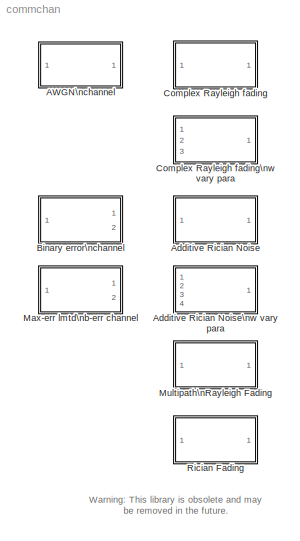
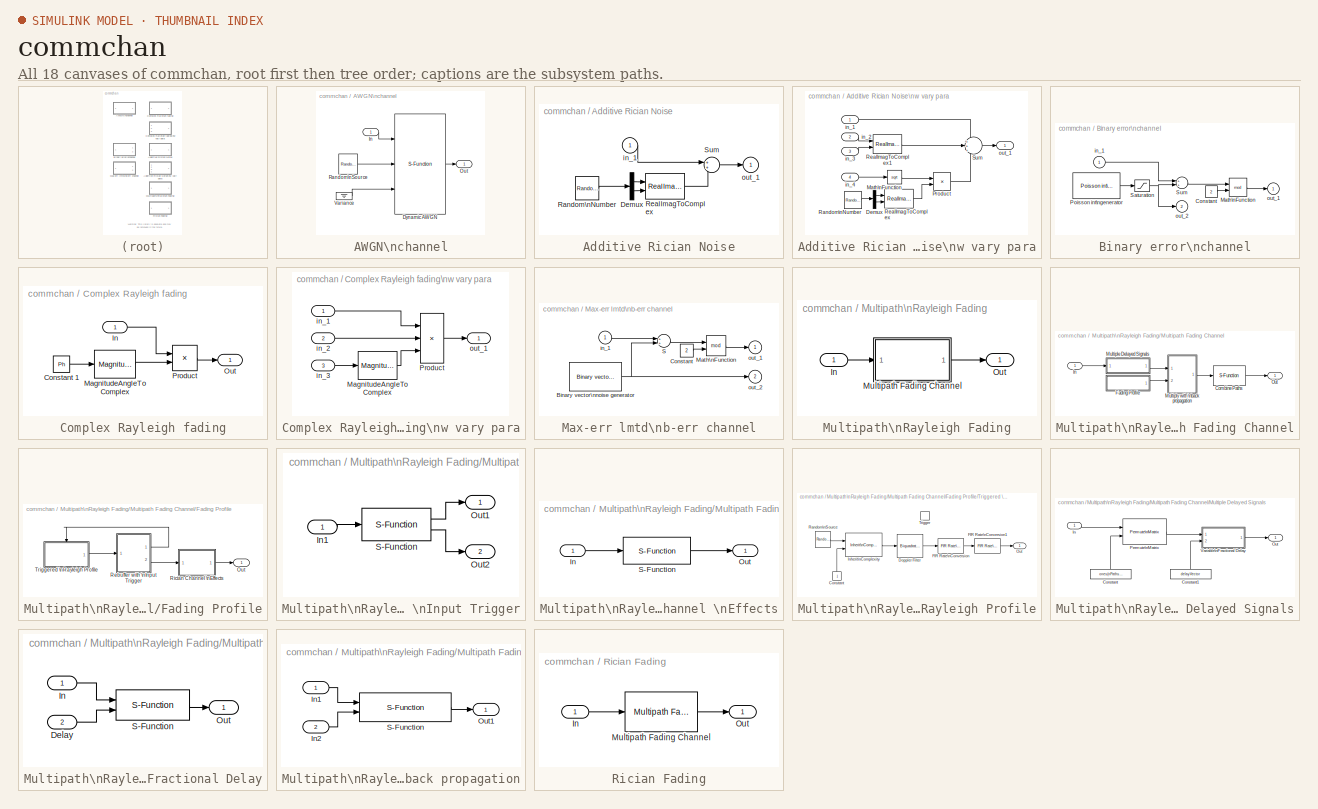
[diagram: thumbnail index - all 18 canvases of the model, root first then tree order]
MODEL commchan
KIND library
BLOCK [SubSystem] AWGN\nchannel
  MaskCallbackString = |commblkawgnchan(gcb,'Mode');||||||commblkawgnchan(gcb,'FrameBased');|
  MaskDescription = Add white Gaussian noise to the input signal. The input and output signals can be real or complex. This block supports multi channel input and output signals as well as frame-based processing.\n\nWhen using either of the variance modes with complex inputs, the variance values are equally divided among the real and imaginary components of the input signal.
  MaskDisplay = plot(-10,-10,110, 110,[05 15 10 10 05 10 18 14 13 7.5 13 41 44 47 50 53 57\n59 100-[13 7.5 13 14 18 10 5 10 10 15 5]],[70 70 70 85 92 85 79 82 90 88.5\n90 90 87 93 87 93 87 90 90 88.5 90 82 79 85 92 85 70 70 70]);\ndisp('AWGN');\nport_label('input',s.i1,s.i1s);\nport_label('input',s.i2,s.i2s);\nport_label('output',s.o1,s.o1s);\n
  MaskEnableString = on,on,on,off,on,on,off,on,off
  MaskIconFrame = on
  MaskIconOpaque = on
  MaskIconRotate = none
  MaskIconUnits = autoscale
  MaskInitialization = [mode,s]=commblkawgnchan(gcb,'init');
  MaskPromptString = Initial seed:|Mode:|Es/No (dB):|SNR (dB):|Input signal power (Watts):|Symbol period (sec):|Variance:|Frame-based inputs|Number of channels:
  MaskSelfModifiable = on
  MaskStyleString = edit,popup(Signal to noise ratio  (Es/No)|Signal to noise ratio  (SNR)|Variance from mask|Variance from port),edit,edit,edit,edit,edit,checkbox,edit
  MaskToolTipString = on,on,on,on,on,on,on,on,on
  MaskTunableValueString = off,off,on,on,on,off,on,off,off
  MaskType = AWGN Channel
  MaskValueString = 123456|Signal to noise ratio  (Es/No)|10|10|1|1|1|off|1
  MaskVarAliasString = ,,,,,,,,
  MaskVariables = seed=@1;noiseMode=@2;EsNodB=@3;SNRdB=@4;Ps=@5;Tsym=@6;variance=@7;FrameBased=@8;nChans=@9;
  MaskVisibilityString = on,on,on,off,on,on,off,on,on
  Ports = [1, 1]
  TreatAsAtomicUnit = off
BLOCK [S-Function] AWGN\nchannel/Dynamic AWGN
  FunctionName = scomawgnchan
  MaskIconFrame = on
  MaskIconOpaque = on
  MaskIconRotate = none
  MaskIconUnits = autoscale
  Parameters = noiseMode,EsNodB,SNRdB,Ps,Tsym,variance,FrameBased,nChans
  Ports = [3, 1]
BLOCK [Inport] AWGN\nchannel/In
BLOCK [Outport] AWGN\nchannel/Out
BLOCK [Reference] AWGN\nchannel/Random\nSource  REF=dspsrcs2/Random\nSource
  Diagnostics = AllowInheritedTsInSrc
  Inherit = on
  Max = 1
  Mean = 0
  Min = 0
  OutComplex = Real
  Ports = [0, 1]
  SampFrame = 1
  SampMode = Discrete
  SampTime = 1
  Seed = seed
  SourceBlock = dspsrcs2/Random\nSource
  SourceType = Random Source
  SrcType = Gaussian
  Var = 1
BLOCK [Ground] AWGN\nchannel/Variance
BLOCK [SubSystem] Additive Rician Noise
  MaskCallbackString = |||
  MaskDescription = Additive Rician noise channel for baseband signal simulation. Input and output signals are complex.
  MaskDisplay = plot(0,0,100,100,[05 15 10 10 05 10 18 14 13 7.5 13 41 44 47 50 53 57 59 100-[13 7.5 13 14 18 10 5 10 10 15 5]],[70 70 70 85 92 85 79 82 90 88.5 90 90 87 93 87 93 87 90 90 88.5 90 82 79 85 92 85 70 70 70]);\ndisp('Complex\\nRician Noise')
  MaskEnableString = on,on,on,on
  MaskHelp = This block adds Rician noise to the input signal. The input and output of this block are complex signals. Rician noise is composed of two independant Gaussian noise elements. The two Gaussian components have the same variance. Their mean values are in-phase mean and quadrature mean respectively.
  MaskIconFrame = on
  MaskIconOpaque = on
  MaskIconRotate = none
  MaskIconUnits = autoscale
  MaskInitialization = rand('state',s(1));\nSeedVec = floor(1e5*rand(2,1));\n\n\n
  MaskPromptString = In-phase mean:|Quadrature mean:|Variance:|Seed:
  MaskStyleString = edit,edit,edit,edit
  MaskToolTipString = on,on,on,on
  MaskTunableValueString = on,on,on,on
  MaskType = Rician noise channel, fixed parameter
  MaskValueString = .1|.3|.1|1234
  MaskVarAliasString = ,,,
  MaskVariables = m1=@1;m2=@2;d=@3;s=@4;
  MaskVisibilityString = on,on,on,on
  Ports = [1, 1]
  TreatAsAtomicUnit = off
BLOCK [Demux] Additive Rician Noise/Demux
  Outputs = 2
  Ports = [1, 2]
BLOCK [RandomNumber] Additive Rician Noise/Random\nNumber
  Diagnostics = AllowInheritedTsInSrc
  Mean = [m1 m2]
  Seed = SeedVec
  Variance = [d d]
BLOCK [RealImagToComplex] Additive Rician Noise/RealImagToComplex
  Input = Real and imag
  Ports = [2, 1]
BLOCK [Sum] Additive Rician Noise/Sum
  IconShape = round
  Ports = [2, 1]
BLOCK [Inport] Additive Rician Noise/in_1
BLOCK [Outport] Additive Rician Noise/out_1
  InitialOutput = 0
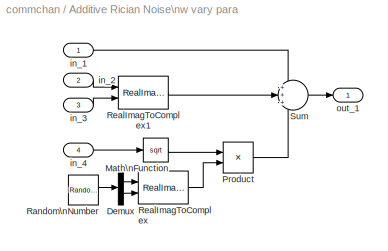
BLOCK [SubSystem] Additive Rician Noise\nw vary para
  MaskDescription = Add Rician noise to complex signal (1st port) with the varying in-phase mean (2nd port), quadrature mean (3rd port), and variance (4th port).
  MaskDisplay = plot(0,0,100,100,[05 15 10 10 05 10 18 14 13 7.5 13 41 44 47 50 53 57 59 100-[13 7.5 13 14 18 10 5 10 10 15 5]],[70 70 70 85 92 85 79 82 90 88.5 90 90 87 93 87 93 87 90 90 88.5 90 82 79 85 92 85 70 70 70]);\ndisp('Complex\\nRician Noise')
  MaskEnableString = on
  MaskHelp = This block adds Rician noise to the transmitted signal. The 1st port input and output of this block are complex data. The Rician noise is composed of two independant Gaussian noise elements. The mean value of the two Gaussian components are input from 2nd and 3rd inports respectively. Their variance are the same which is input from the 4th inport.
  MaskIconFrame = on
  MaskIconOpaque = on
  MaskIconRotate = none
  MaskIconUnits = autoscale
  MaskInitialization = rand('state',s(1));\nSeedVec = floor(1e5*rand(2,1));\n\n
  MaskPromptString = Seeds:
  MaskStyleString = edit
  MaskToolTipString = on
  MaskTunableValueString = on
  MaskType = Rician noise channel, vary parameter
  MaskValueString = [13579,  24680]
  MaskVariables = s=@1;
  MaskVisibilityString = on
  Ports = [4, 1]
  TreatAsAtomicUnit = off
BLOCK [Demux] Additive Rician Noise\nw vary para/Demux
  Outputs = 2
  Ports = [1, 2]
BLOCK [Math] Additive Rician Noise\nw vary para/Math\nFunction
  Operator = sqrt
  Ports = [1, 1]
BLOCK [Product] Additive Rician Noise\nw vary para/Product
  Ports = [2, 1]
BLOCK [RandomNumber] Additive Rician Noise\nw vary para/Random\nNumber
  Diagnostics = AllowInheritedTsInSrc
  Seed = SeedVec
BLOCK [RealImagToComplex] Additive Rician Noise\nw vary para/RealImagToComplex
  Input = Real and imag
  Ports = [2, 1]
BLOCK [RealImagToComplex] Additive Rician Noise\nw vary para/RealImagToComplex1
  Input = Real and imag
  Ports = [2, 1]
BLOCK [Sum] Additive Rician Noise\nw vary para/Sum
  IconShape = round
  Inputs = +++
  Ports = [3, 1]
BLOCK [Inport] Additive Rician Noise\nw vary para/in_1
BLOCK [Inport] Additive Rician Noise\nw vary para/in_2
  Port = 2
BLOCK [Inport] Additive Rician Noise\nw vary para/in_3
  Port = 3
BLOCK [Inport] Additive Rician Noise\nw vary para/in_4
  Port = 4
BLOCK [Outport] Additive Rician Noise\nw vary para/out_1
  InitialOutput = 0
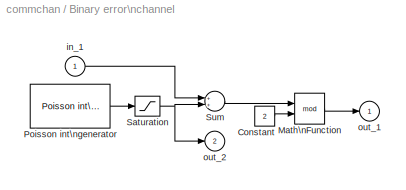
BLOCK [SubSystem] Binary error\nchannel
  MaskCallbackString = |||
  MaskDescription = Add binary errors to the input signal. The error probability can be a scalar or a vector with the same length as the input vector length.
  MaskDisplay = plot(0,0,100,100,[05 15 10 10 05 10 18 14 13 7.5 13 41 44 47 50 53 57 59 100-[13 7.5 13 14 18 10 5 10 10 15 5]],[70 70 70 85 92 85 79 82 90 88.5 90 90 87 93 87 93 87 90 90 88.5 90 82 79 85 92 85 70 70 70]);\ndisp('B-error')
  MaskEnableString = on,on,on,on
  MaskHelp = This block adds binary errors to transmitted binary signals. The error probability is given in the parameter setting. The first output port outputs the transmitting signal (after adding noise). The second port outputs the errors signal added to the transmitting signal.
  MaskIconFrame = on
  MaskIconOpaque = on
  MaskIconRotate = none
  MaskIconUnits = autoscale
  MaskInitialization = if length(P)~=M,P=ones(1,M)*P(1);end;\nseed = s(1)+cumsum(ones(1,M));\n
  MaskPromptString = Error probability:|Input vector length:|Seed|Sample time (s):
  MaskStyleString = edit,edit,edit,edit
  MaskToolTipString = on,on,on,on
  MaskTunableValueString = on,on,on,on
  MaskType = Binary Error Channel
  MaskValueString = 0.05|15|12345|1
  MaskVarAliasString = ,,,
  MaskVariables = P=@1;M=@2;s=@3;Ts=@4;
  MaskVisibilityString = on,on,on,on
  Ports = [1, 2]
  TreatAsAtomicUnit = off
BLOCK [Constant] Binary error\nchannel/Constant
  Value = 2
BLOCK [Math] Binary error\nchannel/Math\nFunction
  Operator = mod
  Ports = [2, 1]
BLOCK [Reference] Binary error\nchannel/Poisson int\ngenerator  REF=commsource/Poisson int\ngenerator
  Ports = [0, 1]
  SourceBlock = commsource/Poisson int\ngenerator
  SourceType = Poisson random integer generator
  Ts = Ts
  lambda = P
  seed = seed
BLOCK [Saturate] Binary error\nchannel/Saturation
  LowerLimit = 0
  UpperLimit = 1
BLOCK [Sum] Binary error\nchannel/Sum
  Ports = [2, 1]
BLOCK [Inport] Binary error\nchannel/in_1
BLOCK [Outport] Binary error\nchannel/out_1
  InitialOutput = 0
BLOCK [Outport] Binary error\nchannel/out_2
  InitialOutput = 0
  Port = 2
BLOCK [SubSystem] Complex Rayleigh fading
  MaskCallbackString = |
  MaskDescription = Rayleigh fading channel with fixed fading envelope and phase shift.
  MaskDisplay = plot(0,0,100,100,[05 15 10 10 05 10 18 14 13 7.5 13 41 44 47 50 53 57 59 100-[13 7.5 13 14 18 10 5 10 10 15 5]],[70 70 70 85 92 85 79 82 90 88.5 90 90 87 93 87 93 87 90 90 88.5 90 82 79 85 92 85 70 70 70]);\ndisp('Complex\\nRayl Fading')
  MaskEnableString = on,on
  MaskHelp = This block applies the fading and phase shifting to the transmitting signal. In general, the fading envelope should be no larger than one. The input and the output of this block are both complex signals.
  MaskIconFrame = on
  MaskIconOpaque = on
  MaskIconRotate = none
  MaskIconUnits = autoscale
  MaskInitialization = \n
  MaskPromptString = Rayleigh fading envelope:|Phase shift of the channel (rad):
  MaskStyleString = edit,edit
  MaskToolTipString = on,on
  MaskTunableValueString = on,on
  MaskType = Rayleigh fading channel, fixed parameter
  MaskValueString = 1|0
  MaskVarAliasString = ,
  MaskVariables = a=@1;Ph=@2;
  MaskVisibilityString = on,on
  Ports = [1, 1]
  TreatAsAtomicUnit = off
BLOCK [Constant] Complex Rayleigh fading/Constant 1
  Value = Ph
BLOCK [Inport] Complex Rayleigh fading/In
BLOCK [MagnitudeAngleToComplex] Complex Rayleigh fading/MagnitudeAngleToComplex
  ConstantPart = a
  Input = Angle
  Ports = [1, 1]
BLOCK [Outport] Complex Rayleigh fading/Out
  InitialOutput = 0
BLOCK [Product] Complex Rayleigh fading/Product
  Ports = [2, 1]
BLOCK [SubSystem] Complex Rayleigh fading\nw vary para
  MaskDescription = The fading envelope and the phase shift of the channel changes with the 2nd and 3rd input port values.
  MaskDisplay = plot(0,0,100,100,[05 15 10 10 05 10 18 14 13 7.5 13 41 44 47 50 53 57 59 100-[13 7.5 13 14 18 10 5 10 10 15 5]],[70 70 70 85 92 85 79 82 90 88.5 90 90 87 93 87 93 87 90 90 88.5 90 82 79 85 92 85 70 70 70]);\ndisp('Complex\\nRayl Fading')
  MaskHelp = This block applies Rayleigh fading to the transmitting signals. The fading envelope and the phase of the channel are provided in the 2nd and the 3rd input port. The 1st input port and the output of this block are complex signals.
  MaskIconFrame = on
  MaskIconOpaque = on
  MaskIconRotate = none
  MaskIconUnits = autoscale
  MaskType = Rayleigh fading channel, vary parameter
  Ports = [3, 1]
  TreatAsAtomicUnit = off
BLOCK [MagnitudeAngleToComplex] Complex Rayleigh fading\nw vary para/MagnitudeAngleToComplex
  ConstantPart = 1
  Input = Angle
  Ports = [1, 1]
BLOCK [Product] Complex Rayleigh fading\nw vary para/Product
  Inputs = 3
  Ports = [3, 1]
BLOCK [Inport] Complex Rayleigh fading\nw vary para/in_1
BLOCK [Inport] Complex Rayleigh fading\nw vary para/in_2
  Port = 2
BLOCK [Inport] Complex Rayleigh fading\nw vary para/in_3
  Port = 3
BLOCK [Outport] Complex Rayleigh fading\nw vary para/out_1
  InitialOutput = 0
BLOCK [SubSystem] Max-err lmtd\nb-err channel
  MaskCallbackString = |||
  MaskDescription = Add binary errors with specified error number probability.
  MaskDisplay = plot(0,0,100,100,[05 15 10 10 05 10 18 14 13 7.5 13 41 44 47 50 53 57 59 100-[13 7.5 13 14 18 10 5 10 10 15 5]],[70 70 70 85 92 85 79 82 90 88.5 90 90 87 93 87 93 87 90 90 88.5 90 82 79 85 92 85 70 70 70]);\ndisp('Lmtd b-err')
  MaskEnableString = on,on,on,on
  MaskHelp = This block adds binary errors to the input signal. The maximum number of errors added to the signal is the same as the length of the vector probability. The value of ith element of the probability is the probability of i number of errors in the vector. The 1st outport is the signal with added noise. The 2nd outport is the added noise.
  MaskIconFrame = on
  MaskIconOpaque = on
  MaskIconRotate = none
  MaskIconUnits = autoscale
  MaskPromptString = Vector length(can't be changed during simulation):|Probability of one err, two errs, three errs...:|Seed:|Sample time (s):
  MaskStyleString = edit,edit,edit,edit
  MaskToolTipString = on,on,on,on
  MaskTunableValueString = on,on,on,on
  MaskType = Limited binary error channel
  MaskValueString = 7|1/2|12345|
  MaskVarAliasString = ,,,
  MaskVariables = leng=@1;prob=@2;seed=@3;Ts=@4;
  MaskVisibilityString = on,on,on,on
  Ports = [1, 2]
  TreatAsAtomicUnit = off
BLOCK [Reference] Max-err lmtd\nb-err channel/Binary vector\nnoise generator  REF=commsource/Binary vector\nnoise generator
  Ports = [0, 1]
  SourceBlock = commsource/Binary vector\nnoise generator
  SourceType = Binary noise generator
  Ts = Ts
  n = leng
  prob = prob
  seed = seed
BLOCK [Constant] Max-err lmtd\nb-err channel/Constant
  Value = 2
BLOCK [Math] Max-err lmtd\nb-err channel/Math\nFunction
  Operator = mod
  Ports = [2, 1]
BLOCK [Sum] Max-err lmtd\nb-err channel/S
  Ports = [2, 1]
BLOCK [Inport] Max-err lmtd\nb-err channel/in_1
BLOCK [Outport] Max-err lmtd\nb-err channel/out_1
  InitialOutput = 0
BLOCK [Outport] Max-err lmtd\nb-err channel/out_2
  InitialOutput = 0
  Port = 2
BLOCK [SubSystem] Multipath\nRayleigh Fading
  MaskCallbackString = |||||
  MaskDescription = Multipath Rayleigh fading channel for complex baseband signals.\n\nMultiplies the input signal with samples of a Rayleigh distributed complex random process. The spectrum of the Rayleigh process is given by the Jakes PSD, where the Doppler frequency parameter determines the maximum Doppler frequency.\n\nThe number of paths equals the length of either the 'Delay vector' or 'Gain vector' parameters.
  MaskDisplay = plot(0,0,100,100,[05 15 10 10 05 10 18 14 13 7.5 13 41 44 47 50 53 57 59 100-[13 7.5 13 14 18 10 5 10 10 15 5]],[70 70 70 85 92 85 79 82 90 88.5 90 90 87 93 87 93 87 90 90 88.5 90 82 79 85 92 85 70 70 70]);\ndisp('Multipath\\nRayleigh Fading')
  MaskEnableString = on,on,on,on,on,on
  MaskHelp = web(commbhelp);
  MaskIconFrame = on
  MaskIconOpaque = on
  MaskIconRotate = none
  MaskIconUnits = autoscale
  MaskInitialization = commblkrayleighchan(gcb);
  MaskPromptString = Doppler frequency (Hz):|Sample time (sec):|Delay vector (sec):|Gain vector (dB):|Normalize gain vector to 0 dB overall gain|Initial seed:
  MaskSelfModifiable = on
  MaskStyleString = edit,edit,edit,edit,checkbox,edit
  MaskToolTipString = on,on,on,on,on,on
  MaskTunableValueString = on,on,on,on,on,on
  MaskType = Multipath Rayleigh Fading
  MaskValueString = 40|1e-6|[0 2e-6]|[0 -3]|on|1234
  MaskVarAliasString = ,,,,,
  MaskVariables = Fd=@1;simTs=@2;delayVec=@3;gainVecdB=@4;normGain=@5;Seed=@6;
  MaskVisibilityString = on,on,on,on,on,on
  Ports = [1, 1]
  TreatAsAtomicUnit = off
BLOCK [Inport] Multipath\nRayleigh Fading/In
BLOCK [SubSystem] Multipath\nRayleigh Fading/Multipath Fading Channel
  MaskCallbackString = |||||||
  MaskDescription = Multipath fading channel for complex baseband signals.\n\nMultiplies the input signal with samples of a complex random process. The spectrum of the random process is given by the Jakes PSD, where the Doppler frequency parameter determines the maximum Doppler frequency. The K-factor parameter specifies the linear ratio of power in the direct path to the diffuse power. \n\nThe number of paths equals...<+69ch>
  MaskDisplay = plot(0,0,100,100,[05 15 10 10 05 10 18 14 13 7.5 13 41 44 47 50 53 57 59 100-[13 7.5 13 14 18 10 5 10 10 15 5]],[70 70 70 85 92 85 79 82 90 88.5 90 90 87 93 87 93 87 90 90 88.5 90 82 79 85 92 85 70 70 70]);\ndisp('Multipath\\nFading')
  MaskEnableString = on,on,on,on,on,on,on,on
  MaskIconFrame = on
  MaskIconOpaque = on
  MaskIconRotate = none
  MaskIconUnits = autoscale
  MaskInitialization = [ecode,emsg,params] = commblkfadingchan(gcb,Fd,LOSFd,K,simTs,delayVec,gainVecdB,normGain,Seed);\nif(ecode==1)\n    error(emsg);\nelseif(ecode==2)\n    warning(emsg);\nend;
  MaskPromptString = Doppler frequency (Hz):|Line-of-sight Doppler frequency (Hz):|K-factor:|Sample time (sec):|Delay vector (sec):|Gain vector (dB):|Normalize gain vector to 0 dB overall gain|Initial seed:
  MaskSelfModifiable = on
  MaskStyleString = edit,edit,edit,edit,edit,edit,checkbox,edit
  MaskToolTipString = on,on,on,on,on,on,on,on
  MaskTunableValueString = on,on,on,on,on,on,on,on
  MaskType = Multipath Fading
  MaskValueString = Fd|0|0|simTs|delayVec|gainVecdB|on|Seed
  MaskVarAliasString = ,,,,,,,
  MaskVariables = Fd=@1;LOSFd=@2;K=@3;simTs=@4;delayVec=@5;gainVecdB=@6;normGain=@7;Seed=@8;
  MaskVisibilityString = on,on,on,on,on,on,on,on
  Ports = [1, 1]
  TreatAsAtomicUnit = off
BLOCK [S-Function] Multipath\nRayleigh Fading/Multipath Fading Channel/Combine Paths
  FunctionName = sdspmsum
  MaskCallbackString = |
  MaskDescription = Sum of matrix elements along the row or column dimension.
  MaskDisplay = disp(str);
  MaskEnableString = on,on
  MaskHelp = web(dspbhelp);
  MaskIconFrame = on
  MaskIconOpaque = on
  MaskIconRotate = none
  MaskIconUnits = autoscale
  MaskInitialization = if (Dim==1), str='Row\\nSum';\nelse str='Column\\nSum';\nend\n
  MaskPromptString = Sum along:|Number of columns in input:
  MaskStyleString = popup(Rows|Columns),edit
  MaskToolTipString = on,on
  MaskTunableValueString = off,off
  MaskType = Matrix Sum
  MaskValueString = Rows|params.nPaths
  MaskVarAliasString = ,
  MaskVariables = Dim=@1;Cols=@2;
  MaskVisibilityString = on,on
  Parameters = Cols,Dim
  Ports = [1, 1]
BLOCK [SubSystem] Multipath\nRayleigh Fading/Multipath Fading Channel/Fading Profile
  MaskDisplay = disp('Fading\\nProfile')
  MaskIconFrame = on
  MaskIconOpaque = on
  MaskIconRotate = none
  MaskIconUnits = autoscale
  Ports = [0, 1]
  TreatAsAtomicUnit = off
BLOCK [Outport] Multipath\nRayleigh Fading/Multipath Fading Channel/Fading Profile/Out
BLOCK [SubSystem] Multipath\nRayleigh Fading/Multipath Fading Channel/Fading Profile/Rebuffer with \nInput Trigger
  MaskCallbackString = ||commblktriggeredbuffer(gcb,'InputWidthMode');||||
  MaskDescription = This block inherits the input and output port widths and complexity and the output sample time.  The input must be from a function call subsystem.  The block generates a function call trigger on port 1 when ever data is required.  and outputs the buffered input data on port 2.
  MaskDisplay = disp('Rebuffer\\nwith trigger');\nport_label('input',s.i1,s.i1s);\nport_label('output',s.o1,s.o1s);\nport_label('output',s.o2,s.o2s);
  MaskEnableString = on,on,on,off,on,on,on
  MaskIconFrame = on
  MaskIconOpaque = on
  MaskIconRotate = none
  MaskIconUnits = autoscale
  MaskInitialization = s = commblktriggeredbuffer(gcb,'init',{});\n
  MaskPromptString = Start delay:|Number of channels:|Input width mode:|Input width (per channel):|Minimum input width (per channel):|Input width step size (per channel):|Maximum input width (per channel):
  MaskSelfModifiable = on
  MaskStyleString = edit,edit,popup(Inherit|Specify|Based on output width),edit,edit,edit,edit
  MaskToolTipString = on,on,on,on,on,on,on
  MaskTunableValueString = off,off,off,off,off,off,off
  MaskType = Rebuffer with Input Trigger
  MaskValueString = params.startDelay|params.nPaths|Based on output width|params.intFactor|params.intFactor|params.intFactor|params.maxPathWidth
  MaskVarAliasString = ,,,,,,
  MaskVariables = startSample=@1;numChan=@2;inputWidthMode=@3;inputWidth=@4;inputWidthMin=@5;inputWidthStep=@6;inputWidthMax=@7;
  MaskVisibilityString = on,on,on,off,on,on,on
  Ports = [1, 2]
  TreatAsAtomicUnit = off
BLOCK [Inport] Multipath\nRayleigh Fading/Multipath Fading Channel/Fading Profile/Rebuffer with \nInput Trigger/In1
BLOCK [Outport] Multipath\nRayleigh Fading/Multipath Fading Channel/Fading Profile/Rebuffer with \nInput Trigger/Out1
BLOCK [Outport] Multipath\nRayleigh Fading/Multipath Fading Channel/Fading Profile/Rebuffer with \nInput Trigger/Out2
  Port = 2
BLOCK [S-Function] Multipath\nRayleigh Fading/Multipath Fading Channel/Fading Profile/Rebuffer with \nInput Trigger/S-Function
  FunctionName = scomtrigbuff
  Parameters = startSample, numChan, inputWidthMode, inputWidth, inputWidthMin, inputWidthStep, inputWidthMax
  Ports = [1, 2]
BLOCK [SubSystem] Multipath\nRayleigh Fading/Multipath Fading Channel/Fading Profile/Rician Channel \nEffects
  MaskCallbackString = ||||
  MaskDescription = Add a complex phasor to the unity variance complex input to produce Rician channel effects.  The Doppler frequency parameter determines frequency of the complex phasor.
  MaskDisplay = disp('Rician\\nChannel')
  MaskEnableString = on,on,on,on,on
  MaskIconFrame = on
  MaskIconOpaque = on
  MaskIconRotate = none
  MaskIconUnits = autoscale
  MaskPromptString = Line-of-sight Doppler frequency (Hz):|K-factor|Required output power (Watts):|Sample time (s):|Number of channels:
  MaskStyleString = edit,edit,edit,edit,edit
  MaskToolTipString = on,on,on,on,on
  MaskTunableValueString = on,on,on,on,on
  MaskType = Ricean Channel Effects
  MaskValueString = params.LOSFd|params.K|params.gainVecLin|simTs|params.nPaths
  MaskVarAliasString = ,,,,
  MaskVariables = Doppler=@1;K=@2;opPower=@3;Ts=@4;numChan=@5;
  MaskVisibilityString = on,on,on,on,on
  Ports = [1, 1]
  TreatAsAtomicUnit = off
BLOCK [Inport] Multipath\nRayleigh Fading/Multipath Fading Channel/Fading Profile/Rician Channel \nEffects/In
BLOCK [Outport] Multipath\nRayleigh Fading/Multipath Fading Channel/Fading Profile/Rician Channel \nEffects/Out
BLOCK [S-Function] Multipath\nRayleigh Fading/Multipath Fading Channel/Fading Profile/Rician Channel \nEffects/S-Function
  FunctionName = scomricianlos
  Parameters = Doppler,K,opPower,Ts,numChan
  Ports = [1, 1]
BLOCK [SubSystem] Multipath\nRayleigh Fading/Multipath Fading Channel/Fading Profile/Triggered \nRayleigh Profile
  Ports = [0, 1, 0, 1]
  TreatAsAtomicUnit = on
BLOCK [Constant] Multipath\nRayleigh Fading/Multipath Fading Channel/Fading Profile/Triggered \nRayleigh Profile/Constant
  Value = j
BLOCK [Reference] Multipath\nRayleigh Fading/Multipath Fading Channel/Fading Profile/Triggered \nRayleigh Profile/Doppler Filter  REF=dsparch2/Biquadratic\nFilter
  Ports = [1, 1]
  SourceBlock = dsparch2/Biquadratic\nFilter
  SourceType = Biquadratic Filter
  frame = on
  ic = 0
  nchans = params.nPaths
  sos = params.dopplerSos
BLOCK [Reference] Multipath\nRayleigh Fading/Multipath Fading Channel/Fading Profile/Triggered \nRayleigh Profile/FIR Rate\nConversion  REF=dspmlti2/FIR Rate\nConversion
  L = params.interp1
  M = 1
  Ports = [1, 1]
  SourceBlock = dspmlti2/FIR Rate\nConversion
  SourceType = FIR Rate Conversion
  h = params.interp1Num
  numChans = params.nPaths
BLOCK [Reference] Multipath\nRayleigh Fading/Multipath Fading Channel/Fading Profile/Triggered \nRayleigh Profile/FIR Rate\nConversion1  REF=dspmlti2/FIR Rate\nConversion
  L = params.interp2
  M = 1
  Ports = [1, 1]
  SourceBlock = dspmlti2/FIR Rate\nConversion
  SourceType = FIR Rate Conversion
  h = params.interp2Num
  numChans = params.nPaths
BLOCK [Reference] Multipath\nRayleigh Fading/Multipath Fading Channel/Fading Profile/Triggered \nRayleigh Profile/Inherit\nComplexity  REF=dspelem2/Inherit\nComplexity
  Ports = [2, 1]
  SourceBlock = dspelem2/Inherit\nComplexity
  SourceType = Inherit Complexity
BLOCK [Outport] Multipath\nRayleigh Fading/Multipath Fading Channel/Fading Profile/Triggered \nRayleigh Profile/Out
BLOCK [Reference] Multipath\nRayleigh Fading/Multipath Fading Channel/Fading Profile/Triggered \nRayleigh Profile/Random\nSource  REF=dspsrcs2/Random\nSource
  Diagnostics = AllowInheritedTsInSrc
  Inherit = on
  Max = 1
  Mean = zeros(params.nPaths,1)
  Min = 0
  OutComplex = Real
  Ports = [0, 1]
  SampFrame = 1
  SampMode = Discrete
  SampTime = 1
  Seed = params.Seed
  SourceBlock = dspsrcs2/Random\nSource
  SourceType = Random Source
  SrcType = Gaussian
  Var = ones(params.nPaths,1)
BLOCK [TriggerPort] Multipath\nRayleigh Fading/Multipath Fading Channel/Fading Profile/Triggered \nRayleigh Profile/Trigger
  Ports = []
  TriggerType = function-call
BLOCK [Inport] Multipath\nRayleigh Fading/Multipath Fading Channel/In
BLOCK [SubSystem] Multipath\nRayleigh Fading/Multipath Fading Channel/Multiple Delayed Signals
  MaskCallbackString = |
  MaskDisplay = disp('Multiple\\ndelayed signals');
  MaskEnableString = on,on
  MaskIconFrame = on
  MaskIconOpaque = on
  MaskIconRotate = none
  MaskIconUnits = autoscale
  MaskInitialization = nPaths = length(delayVector);\nmaxDelay = ceil(max(delayVector))+1;
  MaskPromptString = Path delay vector:|Sample time (sec):
  MaskStyleString = edit,edit
  MaskToolTipString = on,on
  MaskTunableValueString = on,on
  MaskType = Multiple Delayed Signals
  MaskValueString = params.sampleDelayVec|simTs
  MaskVarAliasString = ,
  MaskVariables = delayVector=@1;Ts=@2;
  MaskVisibilityString = on,on
  Ports = [1, 1]
  TreatAsAtomicUnit = off
BLOCK [Constant] Multipath\nRayleigh Fading/Multipath Fading Channel/Multiple Delayed Signals/Constant
  Value = ones(nPaths,1)
BLOCK [Constant] Multipath\nRayleigh Fading/Multipath Fading Channel/Multiple Delayed Signals/Constant1
  Value = delayVector
BLOCK [Inport] Multipath\nRayleigh Fading/Multipath Fading Channel/Multiple Delayed Signals/In
BLOCK [Outport] Multipath\nRayleigh Fading/Multipath Fading Channel/Multiple Delayed Signals/Out
BLOCK [Reference] Multipath\nRayleigh Fading/Multipath Fading Channel/Multiple Delayed Signals/Permute\nMatrix  REF=dspmtrx2/Permute\nMatrix
  Ports = [2, 1]
  SourceBlock = dspmtrx2/Permute\nMatrix
  SourceType = Permute Matrix
  cols = 1
  errmode = Clip Index
  mode = Columns
BLOCK [SubSystem] Multipath\nRayleigh Fading/Multipath Fading Channel/Multiple Delayed Signals/Variable\nFractional Delay
  MaskCallbackString = commblkvfdly||||||commblkvfdly||
  MaskDescription = Delay discrete-time input by a time-varying fractional number of sample periods, as specified by the \"delay\" input.  The delay may be applied on an element-by-element basis or channel-by-channel.  Delay must be a real vector signal with one delay value per frame element or one delay value per channel when in channel-by-channel mode.  The FIR filter is designed using \"intfilt\" from the Signal P...<+18ch>
  MaskDisplay = text(0.5,0.4,'z','horiz','right')\ntext(0.5,0.6,'-f','horiz','left')
  MaskEnableString = on,on,on,on,on,on,on,on,on
  MaskIconFrame = on
  MaskIconOpaque = off
  MaskIconRotate = none
  MaskIconUnits = normalized
  MaskInitialization = [b,str] = commblkvfdly(mode,R,L,alpha);\nif strcmp(frame,'off'), numChans=-1; end\n
  MaskPromptString = Mode:|Maximum delay in samples:|Interpolation filter half-length:|Interpolation points per input sample:|Normalized input bandwidth (0 to 1):|Initial Conditions:|Frame-Based Inputs|Number of Channels:|Delay input is \"delay per channel\"
  MaskStyleString = popup(Linear Interpolation|FIR Interpolation),edit,edit,edit,edit,edit,checkbox,edit,checkbox
  MaskToolTipString = on,on,on,on,on,on,on,on,on
  MaskTunableValueString = off,off,off,off,off,off,off,off,on
  MaskType = Variable Fractional Delay
  MaskValueString = FIR Interpolation|maxDelay|6|10|1|0|on|nPaths|on
  MaskVarAliasString = ,,,,,,,,
  MaskVariables = mode=@1;dmax=@2;L=@3;R=@4;alpha=@5;ic=@6;frame=&7;numChans=@8;delayMode=@9;
  MaskVisibilityString = on,on,on,on,on,on,on,on,on
  Ports = [2, 1]
  TreatAsAtomicUnit = off
BLOCK [Inport] Multipath\nRayleigh Fading/Multipath Fading Channel/Multiple Delayed Signals/Variable\nFractional Delay/Delay
  Port = 2
BLOCK [Inport] Multipath\nRayleigh Fading/Multipath Fading Channel/Multiple Delayed Signals/Variable\nFractional Delay/In
BLOCK [Outport] Multipath\nRayleigh Fading/Multipath Fading Channel/Multiple Delayed Signals/Variable\nFractional Delay/Out
  InitialOutput = 0
BLOCK [S-Function] Multipath\nRayleigh Fading/Multipath Fading Channel/Multiple Delayed Signals/Variable\nFractional Delay/S-Function
  FunctionName = scomvfdly
  Parameters = dmax,b,ic,numChans,delayMode
  Ports = [2, 1]
BLOCK [SubSystem] Multipath\nRayleigh Fading/Multipath Fading Channel/Multiply with \nback propagation
  MaskCallbackString = ||
  MaskDescription = Perform multiplication of the two input signals.  \n\nThe width and complexity of the output and the port not targeted for propagation must be identical. The width and complexity of the port targeted for propagation is set to that of the other input.\n\nThe block sample time is the product of the number of samples per frame and the sample time parameter.
  MaskDisplay = disp('Multiply\\nwith prop');
  MaskEnableString = on,on,on
  MaskIconFrame = on
  MaskIconOpaque = on
  MaskIconRotate = none
  MaskIconUnits = autoscale
  MaskPromptString = Propagation target:|Sample time:|Number of channels:
  MaskStyleString = popup(Input 1|Input 2),edit,edit
  MaskToolTipString = on,on,on
  MaskTunableValueString = on,on,on
  MaskType = Multiply with back propagation
  MaskValueString = Input 2|simTs|params.nPaths
  MaskVarAliasString = ,,
  MaskVariables = propTarget=@1;Ts=@2;numChan=@3;
  MaskVisibilityString = on,on,on
  Ports = [2, 1]
  TreatAsAtomicUnit = off
BLOCK [Inport] Multipath\nRayleigh Fading/Multipath Fading Channel/Multiply with \nback propagation/In1
BLOCK [Inport] Multipath\nRayleigh Fading/Multipath Fading Channel/Multiply with \nback propagation/In2
  Port = 2
BLOCK [Outport] Multipath\nRayleigh Fading/Multipath Fading Channel/Multiply with \nback propagation/Out1
BLOCK [S-Function] Multipath\nRayleigh Fading/Multipath Fading Channel/Multiply with \nback propagation/S-Function
  FunctionName = scommultwithprop
  Parameters = propTarget, Ts, numChan
  Ports = [2, 1]
BLOCK [Outport] Multipath\nRayleigh Fading/Multipath Fading Channel/Out
BLOCK [Outport] Multipath\nRayleigh Fading/Out
BLOCK [SubSystem] Rician Fading
  MaskCallbackString = |||||
  MaskDescription = Rician fading channel for complex baseband signals.\n\nMultiplies the input signal with samples of a Rician distributed complex random process. The K-factor parameter specifies the linear ratio of power in the direct path to the diffuse power.  The spectrum of the Rician process is given by the Jakes PSD, where the Doppler frequency parameter determines the maximum Doppler frequency.
  MaskDisplay = plot(0,0,100,100,[05 15 10 10 05 10 18 14 13 7.5 13 41 44 47 50 53 57 59 100-[13 7.5 13 14 18 10 5 10 10 15 5]],[70 70 70 85 92 85 79 82 90 88.5 90 90 87 93 87 93 87 90 90 88.5 90 82 79 85 92 85 70 70 70]);\ndisp('Rician\\nFading')
  MaskEnableString = on,on,on,on,on,on
  MaskHelp = web(commbhelp);
  MaskIconFrame = on
  MaskIconOpaque = on
  MaskIconRotate = none
  MaskIconUnits = autoscale
  MaskInitialization = commblkricianchan(gcb);\n
  MaskPromptString = K-factor:|Doppler frequency (Hz):|Sample time (sec):|Delay (sec):|Gain (dB):|Initial seed:
  MaskSelfModifiable = on
  MaskStyleString = edit,edit,edit,edit,edit,edit
  MaskToolTipString = on,on,on,on,on,on
  MaskTunableValueString = on,on,on,on,on,on
  MaskType = Rician Fading
  MaskValueString = 1|40|1e-6|0|0|1234
  MaskVarAliasString = ,,,,,
  MaskVariables = K=@1;Fd=@2;simTs=@3;delayVec=@4;gainVecdB=@5;Seed=@6;
  MaskVisibilityString = on,on,on,on,on,on
  Ports = [1, 1]
  TreatAsAtomicUnit = off
BLOCK [Inport] Rician Fading/In
BLOCK [Reference] Rician Fading/Multipath Fading Channel  REF=commchan/Multipath\nRayleigh Fading/Multipath Fading Channel
  Fd = Fd
  K = K
  LOSFd = 0
  Ports = [1, 1]
  Seed = Seed
  SourceBlock = commchan/Multipath\nRayleigh Fading/Multipath Fading Channel
  SourceType = Multipath Fading
  delayVec = delayVec
  gainVecdB = gainVecdB
  normGain = off
  simTs = simTs
BLOCK [Outport] Rician Fading/Out
ANNOTATION (root): Warning: This library is obsolete and may\nbe removed in the future.
LINE AWGN\nchannel/Dynamic AWGN:1 -> AWGN\nchannel/Out:1
LINE AWGN\nchannel/In:1 -> AWGN\nchannel/Dynamic AWGN:1
LINE AWGN\nchannel/Random\nSource:1 -> AWGN\nchannel/Dynamic AWGN:2
LINE AWGN\nchannel/Variance:1 -> AWGN\nchannel/Dynamic AWGN:3
LINE Additive Rician Noise/Demux:1 -> Additive Rician Noise/RealImagToComplex:1
LINE Additive Rician Noise/Demux:2 -> Additive Rician Noise/RealImagToComplex:2
LINE Additive Rician Noise/Random\nNumber:1 -> Additive Rician Noise/Demux:1
LINE Additive Rician Noise/RealImagToComplex:1 -> Additive Rician Noise/Sum:2
LINE Additive Rician Noise/Sum:1 -> Additive Rician Noise/out_1:1
LINE Additive Rician Noise/in_1:1 -> Additive Rician Noise/Sum:1
LINE Additive Rician Noise\nw vary para/Demux:1 -> Additive Rician Noise\nw vary para/RealImagToComplex:1
LINE Additive Rician Noise\nw vary para/Demux:2 -> Additive Rician Noise\nw vary para/RealImagToComplex:2
LINE Additive Rician Noise\nw vary para/Math\nFunction:1 -> Additive Rician Noise\nw vary para/Product:1
LINE Additive Rician Noise\nw vary para/Product:1 -> Additive Rician Noise\nw vary para/Sum:3
LINE Additive Rician Noise\nw vary para/Random\nNumber:1 -> Additive Rician Noise\nw vary para/Demux:1
LINE Additive Rician Noise\nw vary para/RealImagToComplex1:1 -> Additive Rician Noise\nw vary para/Sum:2
LINE Additive Rician Noise\nw vary para/RealImagToComplex:1 -> Additive Rician Noise\nw vary para/Product:2
LINE Additive Rician Noise\nw vary para/Sum:1 -> Additive Rician Noise\nw vary para/out_1:1
LINE Additive Rician Noise\nw vary para/in_1:1 -> Additive Rician Noise\nw vary para/Sum:1
LINE Additive Rician Noise\nw vary para/in_2:1 -> Additive Rician Noise\nw vary para/RealImagToComplex1:1
LINE Additive Rician Noise\nw vary para/in_3:1 -> Additive Rician Noise\nw vary para/RealImagToComplex1:2
LINE Additive Rician Noise\nw vary para/in_4:1 -> Additive Rician Noise\nw vary para/Math\nFunction:1
LINE Binary error\nchannel/Constant:1 -> Binary error\nchannel/Math\nFunction:2
LINE Binary error\nchannel/Math\nFunction:1 -> Binary error\nchannel/out_1:1
LINE Binary error\nchannel/Poisson int\ngenerator:1 -> Binary error\nchannel/Saturation:1
NET Binary error\nchannel/Saturation:1 -> Binary error\nchannel/Sum:2, Binary error\nchannel/out_2:1
LINE Binary error\nchannel/Sum:1 -> Binary error\nchannel/Math\nFunction:1
LINE Binary error\nchannel/in_1:1 -> Binary error\nchannel/Sum:1
LINE Complex Rayleigh fading/Constant 1:1 -> Complex Rayleigh fading/MagnitudeAngleToComplex:1
LINE Complex Rayleigh fading/In:1 -> Complex Rayleigh fading/Product:1
LINE Complex Rayleigh fading/MagnitudeAngleToComplex:1 -> Complex Rayleigh fading/Product:2
LINE Complex Rayleigh fading/Product:1 -> Complex Rayleigh fading/Out:1
LINE Complex Rayleigh fading\nw vary para/MagnitudeAngleToComplex:1 -> Complex Rayleigh fading\nw vary para/Product:3
LINE Complex Rayleigh fading\nw vary para/Product:1 -> Complex Rayleigh fading\nw vary para/out_1:1
LINE Complex Rayleigh fading\nw vary para/in_1:1 -> Complex Rayleigh fading\nw vary para/Product:1
LINE Complex Rayleigh fading\nw vary para/in_2:1 -> Complex Rayleigh fading\nw vary para/Product:2
LINE Complex Rayleigh fading\nw vary para/in_3:1 -> Complex Rayleigh fading\nw vary para/MagnitudeAngleToComplex:1
NET Max-err lmtd\nb-err channel/Binary vector\nnoise generator:1 -> Max-err lmtd\nb-err channel/S:2, Max-err lmtd\nb-err channel/out_2:1
LINE Max-err lmtd\nb-err channel/Constant:1 -> Max-err lmtd\nb-err channel/Math\nFunction:2
LINE Max-err lmtd\nb-err channel/Math\nFunction:1 -> Max-err lmtd\nb-err channel/out_1:1
LINE Max-err lmtd\nb-err channel/S:1 -> Max-err lmtd\nb-err channel/Math\nFunction:1
LINE Max-err lmtd\nb-err channel/in_1:1 -> Max-err lmtd\nb-err channel/S:1
LINE Multipath\nRayleigh Fading/In:1 -> Multipath\nRayleigh Fading/Multipath Fading Channel:1
LINE Multipath\nRayleigh Fading/Multipath Fading Channel/Combine Paths:1 -> Multipath\nRayleigh Fading/Multipath Fading Channel/Out:1
LINE Multipath\nRayleigh Fading/Multipath Fading Channel/Fading Profile/Rebuffer with \nInput Trigger/In1:1 -> Multipath\nRayleigh Fading/Multipath Fading Channel/Fading Profile/Rebuffer with \nInput Trigger/S-Function:1
LINE Multipath\nRayleigh Fading/Multipath Fading Channel/Fading Profile/Rebuffer with \nInput Trigger/S-Function:1 -> Multipath\nRayleigh Fading/Multipath Fading Channel/Fading Profile/Rebuffer with \nInput Trigger/Out1:1
LINE Multipath\nRayleigh Fading/Multipath Fading Channel/Fading Profile/Rebuffer with \nInput Trigger/S-Function:2 -> Multipath\nRayleigh Fading/Multipath Fading Channel/Fading Profile/Rebuffer with \nInput Trigger/Out2:1
LINE Multipath\nRayleigh Fading/Multipath Fading Channel/Fading Profile/Rebuffer with \nInput Trigger:1 -> Multipath\nRayleigh Fading/Multipath Fading Channel/Fading Profile/Triggered \nRayleigh Profile:trigger
LINE Multipath\nRayleigh Fading/Multipath Fading Channel/Fading Profile/Rebuffer with \nInput Trigger:2 -> Multipath\nRayleigh Fading/Multipath Fading Channel/Fading Profile/Rician Channel \nEffects:1
LINE Multipath\nRayleigh Fading/Multipath Fading Channel/Fading Profile/Rician Channel \nEffects/In:1 -> Multipath\nRayleigh Fading/Multipath Fading Channel/Fading Profile/Rician Channel \nEffects/S-Function:1
LINE Multipath\nRayleigh Fading/Multipath Fading Channel/Fading Profile/Rician Channel \nEffects/S-Function:1 -> Multipath\nRayleigh Fading/Multipath Fading Channel/Fading Profile/Rician Channel \nEffects/Out:1
LINE Multipath\nRayleigh Fading/Multipath Fading Channel/Fading Profile/Rician Channel \nEffects:1 -> Multipath\nRayleigh Fading/Multipath Fading Channel/Fading Profile/Out:1
LINE Multipath\nRayleigh Fading/Multipath Fading Channel/Fading Profile/Triggered \nRayleigh Profile/Constant:1 -> Multipath\nRayleigh Fading/Multipath Fading Channel/Fading Profile/Triggered \nRayleigh Profile/Inherit\nComplexity:2
LINE Multipath\nRayleigh Fading/Multipath Fading Channel/Fading Profile/Triggered \nRayleigh Profile/Doppler Filter:1 -> Multipath\nRayleigh Fading/Multipath Fading Channel/Fading Profile/Triggered \nRayleigh Profile/FIR Rate\nConversion:1
LINE Multipath\nRayleigh Fading/Multipath Fading Channel/Fading Profile/Triggered \nRayleigh Profile/FIR Rate\nConversion1:1 -> Multipath\nRayleigh Fading/Multipath Fading Channel/Fading Profile/Triggered \nRayleigh Profile/Out:1
LINE Multipath\nRayleigh Fading/Multipath Fading Channel/Fading Profile/Triggered \nRayleigh Profile/FIR Rate\nConversion:1 -> Multipath\nRayleigh Fading/Multipath Fading Channel/Fading Profile/Triggered \nRayleigh Profile/FIR Rate\nConversion1:1
LINE Multipath\nRayleigh Fading/Multipath Fading Channel/Fading Profile/Triggered \nRayleigh Profile/Inherit\nComplexity:1 -> Multipath\nRayleigh Fading/Multipath Fading Channel/Fading Profile/Triggered \nRayleigh Profile/Doppler Filter:1
LINE Multipath\nRayleigh Fading/Multipath Fading Channel/Fading Profile/Triggered \nRayleigh Profile/Random\nSource:1 -> Multipath\nRayleigh Fading/Multipath Fading Channel/Fading Profile/Triggered \nRayleigh Profile/Inherit\nComplexity:1
LINE Multipath\nRayleigh Fading/Multipath Fading Channel/Fading Profile/Triggered \nRayleigh Profile:1 -> Multipath\nRayleigh Fading/Multipath Fading Channel/Fading Profile/Rebuffer with \nInput Trigger:1
LINE Multipath\nRayleigh Fading/Multipath Fading Channel/Fading Profile:1 -> Multipath\nRayleigh Fading/Multipath Fading Channel/Multiply with \nback propagation:2
LINE Multipath\nRayleigh Fading/Multipath Fading Channel/In:1 -> Multipath\nRayleigh Fading/Multipath Fading Channel/Multiple Delayed Signals:1
LINE Multipath\nRayleigh Fading/Multipath Fading Channel/Multiple Delayed Signals/Constant1:1 -> Multipath\nRayleigh Fading/Multipath Fading Channel/Multiple Delayed Signals/Variable\nFractional Delay:2
LINE Multipath\nRayleigh Fading/Multipath Fading Channel/Multiple Delayed Signals/Constant:1 -> Multipath\nRayleigh Fading/Multipath Fading Channel/Multiple Delayed Signals/Permute\nMatrix:2
LINE Multipath\nRayleigh Fading/Multipath Fading Channel/Multiple Delayed Signals/In:1 -> Multipath\nRayleigh Fading/Multipath Fading Channel/Multiple Delayed Signals/Permute\nMatrix:1
LINE Multipath\nRayleigh Fading/Multipath Fading Channel/Multiple Delayed Signals/Permute\nMatrix:1 -> Multipath\nRayleigh Fading/Multipath Fading Channel/Multiple Delayed Signals/Variable\nFractional Delay:1
LINE Multipath\nRayleigh Fading/Multipath Fading Channel/Multiple Delayed Signals/Variable\nFractional Delay/Delay:1 -> Multipath\nRayleigh Fading/Multipath Fading Channel/Multiple Delayed Signals/Variable\nFractional Delay/S-Function:2
LINE Multipath\nRayleigh Fading/Multipath Fading Channel/Multiple Delayed Signals/Variable\nFractional Delay/In:1 -> Multipath\nRayleigh Fading/Multipath Fading Channel/Multiple Delayed Signals/Variable\nFractional Delay/S-Function:1
LINE Multipath\nRayleigh Fading/Multipath Fading Channel/Multiple Delayed Signals/Variable\nFractional Delay/S-Function:1 -> Multipath\nRayleigh Fading/Multipath Fading Channel/Multiple Delayed Signals/Variable\nFractional Delay/Out:1
LINE Multipath\nRayleigh Fading/Multipath Fading Channel/Multiple Delayed Signals/Variable\nFractional Delay:1 -> Multipath\nRayleigh Fading/Multipath Fading Channel/Multiple Delayed Signals/Out:1
LINE Multipath\nRayleigh Fading/Multipath Fading Channel/Multiple Delayed Signals:1 -> Multipath\nRayleigh Fading/Multipath Fading Channel/Multiply with \nback propagation:1
LINE Multipath\nRayleigh Fading/Multipath Fading Channel/Multiply with \nback propagation/In1:1 -> Multipath\nRayleigh Fading/Multipath Fading Channel/Multiply with \nback propagation/S-Function:1
LINE Multipath\nRayleigh Fading/Multipath Fading Channel/Multiply with \nback propagation/In2:1 -> Multipath\nRayleigh Fading/Multipath Fading Channel/Multiply with \nback propagation/S-Function:2
LINE Multipath\nRayleigh Fading/Multipath Fading Channel/Multiply with \nback propagation/S-Function:1 -> Multipath\nRayleigh Fading/Multipath Fading Channel/Multiply with \nback propagation/Out1:1
LINE Multipath\nRayleigh Fading/Multipath Fading Channel/Multiply with \nback propagation:1 -> Multipath\nRayleigh Fading/Multipath Fading Channel/Combine Paths:1
LINE Multipath\nRayleigh Fading/Multipath Fading Channel:1 -> Multipath\nRayleigh Fading/Out:1
LINE Rician Fading/In:1 -> Rician Fading/Multipath Fading Channel:1
LINE Rician Fading/Multipath Fading Channel:1 -> Rician Fading/Out:1
note: NET lines group one-source signal fan-out (src -> all destinations, sorted); 1:1 wires keep LINE
